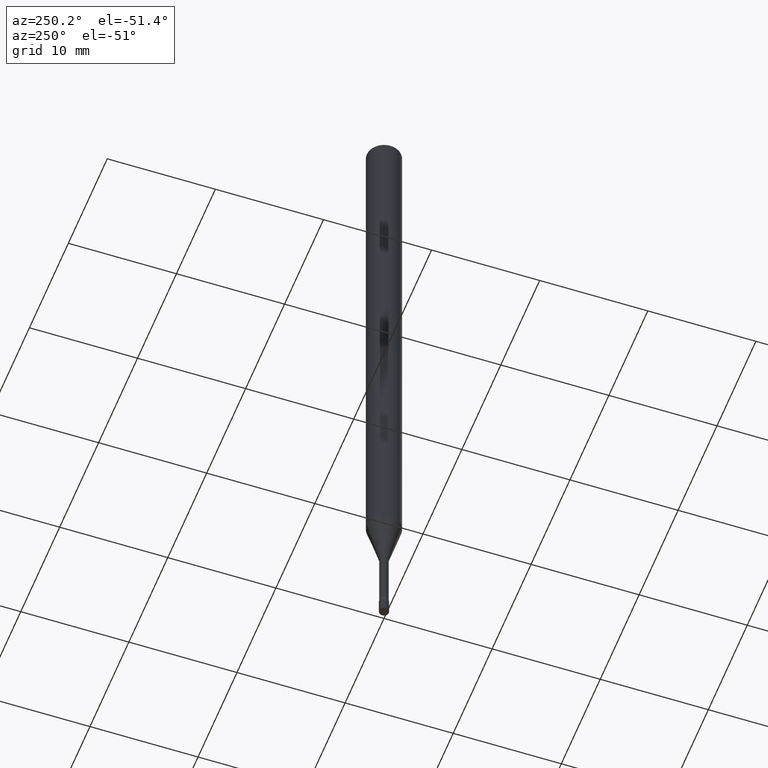
[diagram: clean part render]
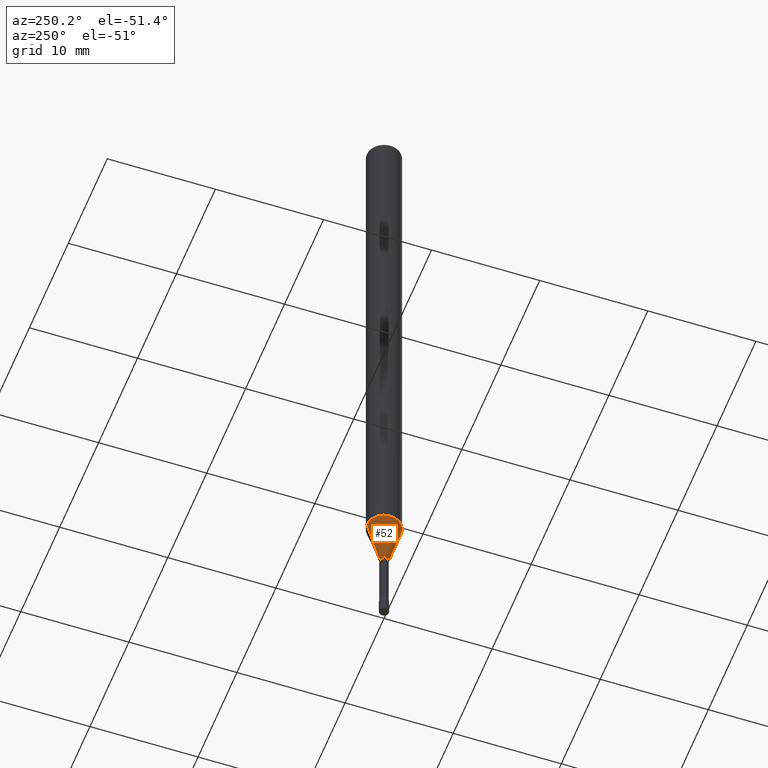
[diagram: same view with one face highlighted and labeled with its STEP entity id]
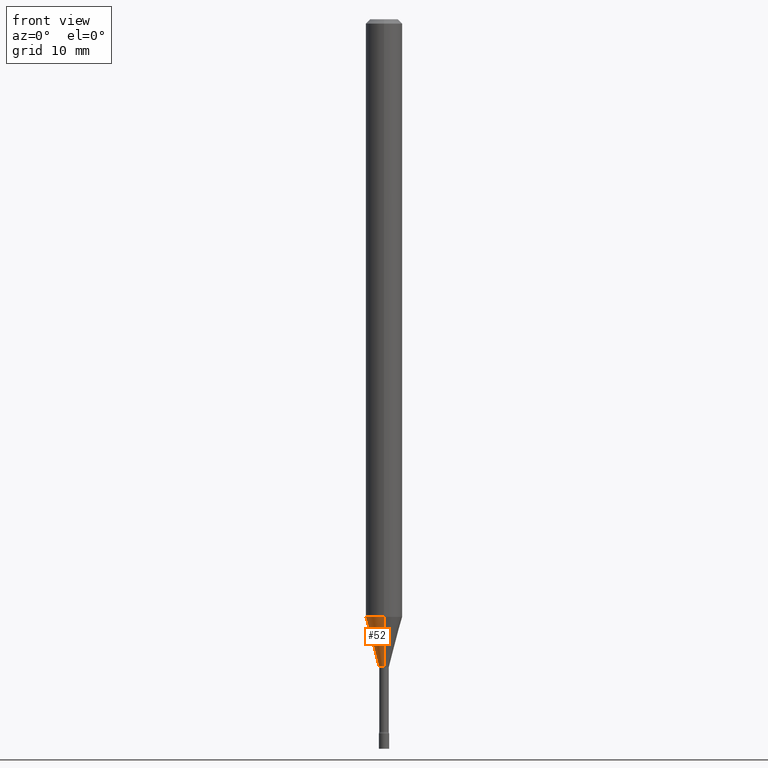
[diagram: same view with one face highlighted and labeled with its STEP entity id]
A machine part, auxiliary view. The second image highlights one B-rep face of the part: STEP entity #52.
A second angle (front view) of the same face is appended — the face is thin or edge-on in the first view.
In plain terms, the highlighted conical surface has half-angle 15 deg.
Its self-contained STEP definition (entity closure, byte-faithful):
#3 = AXIS2_PLACEMENT_3D ( 'NONE', #277, #78, #464 ) ;
#10 = CARTESIAN_POINT ( 'NONE',  ( 1.205159535236902994E-16, 0.01696111260565623738, -2.218092501787273019 ) ) ;
#33 = VERTEX_POINT ( 'NONE', #231 ) ;
#35 = VECTOR ( 'NONE', #370, 39.37007874015748854 ) ;
#52 = ADVANCED_FACE ( 'NONE', ( #147 ), #92, .T. ) ;
#53 = VECTOR ( 'NONE', #362, 39.37007874015748854 ) ;
#54 = DIRECTION ( 'NONE',  ( -2.445474882117663178E-29, 3.491472637761947014E-15, 1.000000000000000000 ) ) ;
#58 = LINE ( 'NONE', #10, #35 ) ;
#78 = DIRECTION ( 'NONE',  ( -2.445474882117663178E-29, 3.491472637761947014E-15, 1.000000000000000000 ) ) ;
#86 = CARTESIAN_POINT ( 'NONE',  ( 5.424289499334304778E-29, -7.744409278015207113E-15, -2.218092501787273019 ) ) ;
#90 = LINE ( 'NONE', #177, #53 ) ;
#92 = CONICAL_SURFACE ( 'NONE', #3, 0.01696111260566398118, 0.2617993877991500740 ) ;
#127 = DIRECTION ( 'NONE',  ( -6.982962677686266711E-15, -1.000000000000000000, 0.000000000000000000 ) ) ;
#134 = VERTEX_POINT ( 'NONE', #426 ) ;
#147 = FACE_OUTER_BOUND ( 'NONE', #166, .T. ) ;
#151 = DIRECTION ( 'NONE',  ( -6.982962677686265922E-15, -1.000000000000000000, 4.370956789862821150E-15 ) ) ;
#166 = EDGE_LOOP ( 'NONE', ( #454, #415, #209, #400 ) ) ;
#172 = VERTEX_POINT ( 'NONE', #174 ) ;
#174 = CARTESIAN_POINT ( 'NONE',  ( 2.823025816869016397E-16, 0.01696111260565623738, -2.218092501787273019 ) ) ;
#177 = CARTESIAN_POINT ( 'NONE',  ( -1.184388162973313820E-16, -0.01696111260567172499, -2.218092501787273019 ) ) ;
#189 = VERTEX_POINT ( 'NONE', #367 ) ;
#209 = ORIENTED_EDGE ( 'NONE', *, *, #219, .T. ) ;
#219 = EDGE_CURVE ( 'NONE', #134, #189, #90, .T. ) ;
#231 = CARTESIAN_POINT ( 'NONE',  ( 4.440892098501126102E-16, 0.06249999999999283906, -2.048139060311453985 ) ) ;
#250 = EDGE_CURVE ( 'NONE', #172, #33, #58, .T. ) ;
#263 = CARTESIAN_POINT ( 'NONE',  ( 5.008672627075734005E-29, -7.151021487408906402E-15, -2.048139060311453541 ) ) ;
#277 = CARTESIAN_POINT ( 'NONE',  ( 5.424289499334304778E-29, -7.744409278015207113E-15, -2.218092501787273019 ) ) ;
#286 = EDGE_CURVE ( 'NONE', #172, #134, #469, .T. ) ;
#303 = AXIS2_PLACEMENT_3D ( 'NONE', #86, #54, #127 ) ;
#342 = DIRECTION ( 'NONE',  ( -2.445474882117663178E-29, 3.491472637761947014E-15, 1.000000000000000000 ) ) ;
#355 = AXIS2_PLACEMENT_3D ( 'NONE', #263, #342, #151 ) ;
#362 = DIRECTION ( 'NONE',  ( -1.807323732225328562E-15, -0.2588190451025179639, 0.9659258262890690894 ) ) ;
#367 = CARTESIAN_POINT ( 'NONE',  ( -4.364351673553417740E-16, -0.06250000000000717482, -2.048139060311453541 ) ) ;
#370 = DIRECTION ( 'NONE',  ( 1.839019923739598738E-15, 0.2588190451025247363, 0.9659258262890673130 ) ) ;
#400 = ORIENTED_EDGE ( 'NONE', *, *, #475, .F. ) ;
#415 = ORIENTED_EDGE ( 'NONE', *, *, #286, .T. ) ;
#426 = CARTESIAN_POINT ( 'NONE',  ( -1.184388162973313820E-16, -0.01696111260567172499, -2.218092501787273019 ) ) ;
#454 = ORIENTED_EDGE ( 'NONE', *, *, #250, .F. ) ;
#464 = DIRECTION ( 'NONE',  ( -6.982962677686266711E-15, -1.000000000000000000, 0.000000000000000000 ) ) ;
#469 = CIRCLE ( 'NONE', #303, 0.01696111260566398118 ) ;
#475 = EDGE_CURVE ( 'NONE', #33, #189, #477, .T. ) ;
#477 = CIRCLE ( 'NONE', #355, 0.06250000000000000000 ) ;